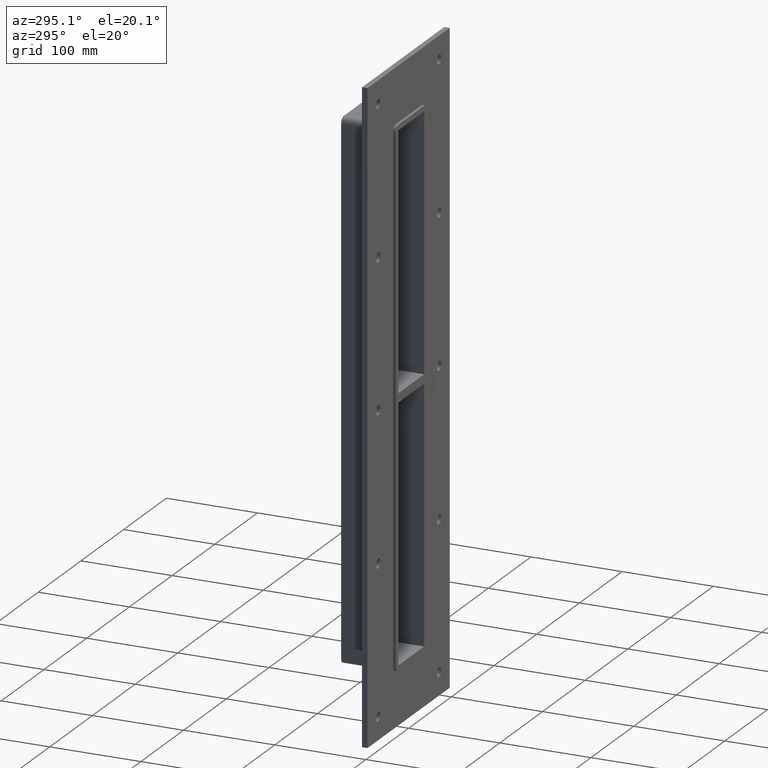
[diagram: clean part render]
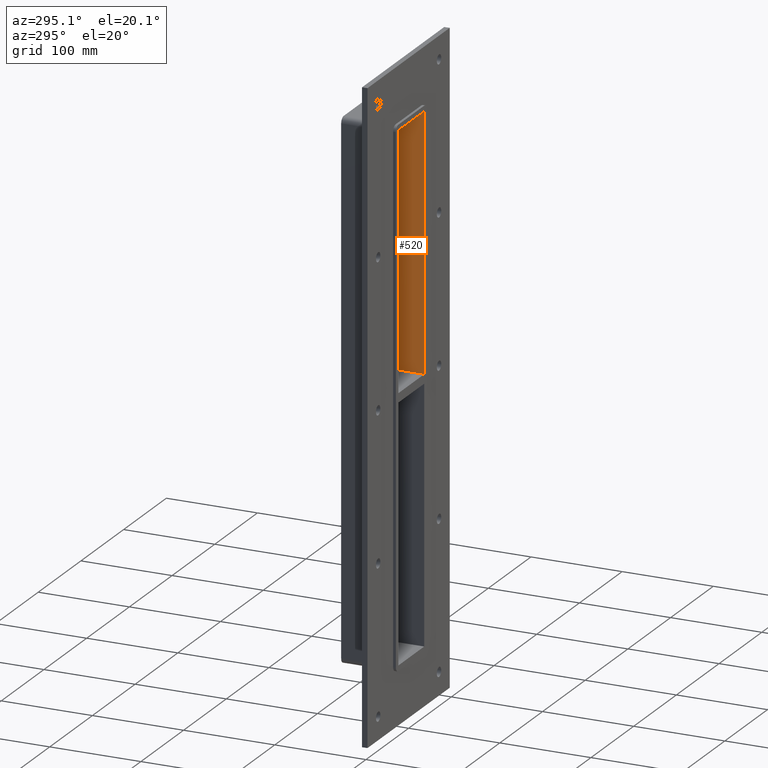
[diagram: same view with one face highlighted and labeled with its STEP entity id]
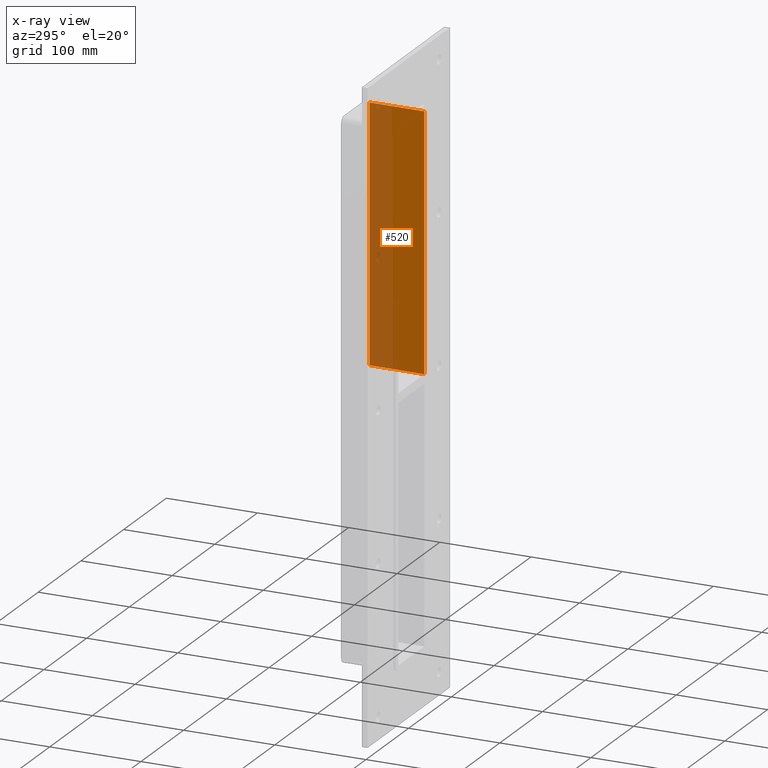
[diagram: x-ray of the same camera — body ghosted, the highlighted face saturated]
A machine part, auxiliary view. The second image highlights one B-rep face of the part: STEP entity #520.
The next image is the same camera in x-ray: the body ghosted, the highlighted face saturated — about 44% of this face is hidden behind the body in this view.
In plain terms, the highlighted planar face has unit normal (1, 0, 0).
Its self-contained STEP definition (entity closure, byte-faithful):
#395=CARTESIAN_POINT('',(30.249999999999019,-3.0,5.0));
#396=VERTEX_POINT('',#395);
#403=CARTESIAN_POINT('',(30.249999999999019,57.0,5.0));
#404=VERTEX_POINT('',#403);
#405=CARTESIAN_POINT('',(30.249999999999986,57.000000000000007,5.0));
#406=DIRECTION('',(0.0,-1.0,0.0));
#407=VECTOR('',#406,60.000000000000007);
#408=LINE('',#405,#407);
#409=EDGE_CURVE('',#404,#396,#408,.T.);
#490=CARTESIAN_POINT('',(30.249999999999986,0.0,283.0));
#491=DIRECTION('',(1.0,0.0,0.0));
#492=DIRECTION('',(0.0,0.0,-1.0));
#493=AXIS2_PLACEMENT_3D('',#490,#491,#492);
#494=PLANE('',#493);
#495=ORIENTED_EDGE('',*,*,#409,.T.);
#496=CARTESIAN_POINT('',(30.249999999999986,-3.0,283.0));
#497=VERTEX_POINT('',#496);
#498=CARTESIAN_POINT('',(30.249999999999986,-3.0,283.0));
#499=DIRECTION('',(0.0,0.0,-1.0));
#500=VECTOR('',#499,278.0);
#501=LINE('',#498,#500);
#502=EDGE_CURVE('',#497,#396,#501,.T.);
#503=ORIENTED_EDGE('',*,*,#502,.F.);
#504=CARTESIAN_POINT('',(30.249999999999986,57.0,283.0));
#505=VERTEX_POINT('',#504);
#506=CARTESIAN_POINT('',(30.249999999999986,-3.0,283.0));
#507=DIRECTION('',(0.0,1.0,0.0));
#508=VECTOR('',#507,60.0);
#509=LINE('',#506,#508);
#510=EDGE_CURVE('',#497,#505,#509,.T.);
#511=ORIENTED_EDGE('',*,*,#510,.T.);
#512=CARTESIAN_POINT('',(30.249999999999986,57.0,5.0));
#513=DIRECTION('',(0.0,0.0,1.0));
#514=VECTOR('',#513,278.0);
#515=LINE('',#512,#514);
#516=EDGE_CURVE('',#404,#505,#515,.T.);
#517=ORIENTED_EDGE('',*,*,#516,.F.);
#518=EDGE_LOOP('',(#495,#503,#511,#517));
#519=FACE_OUTER_BOUND('',#518,.T.);
#520=ADVANCED_FACE('',(#519),#494,.F.);